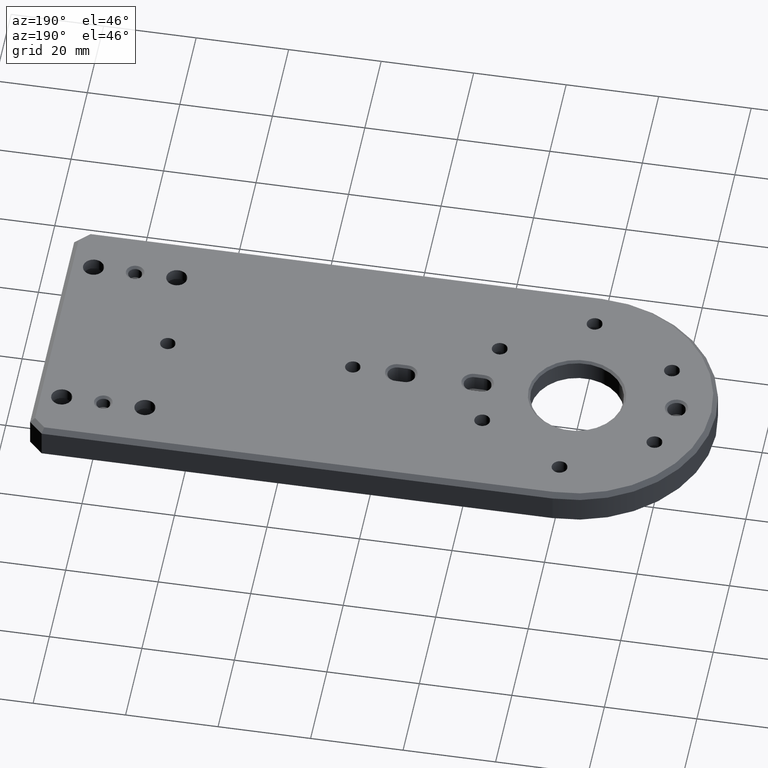
[diagram: clean part render]
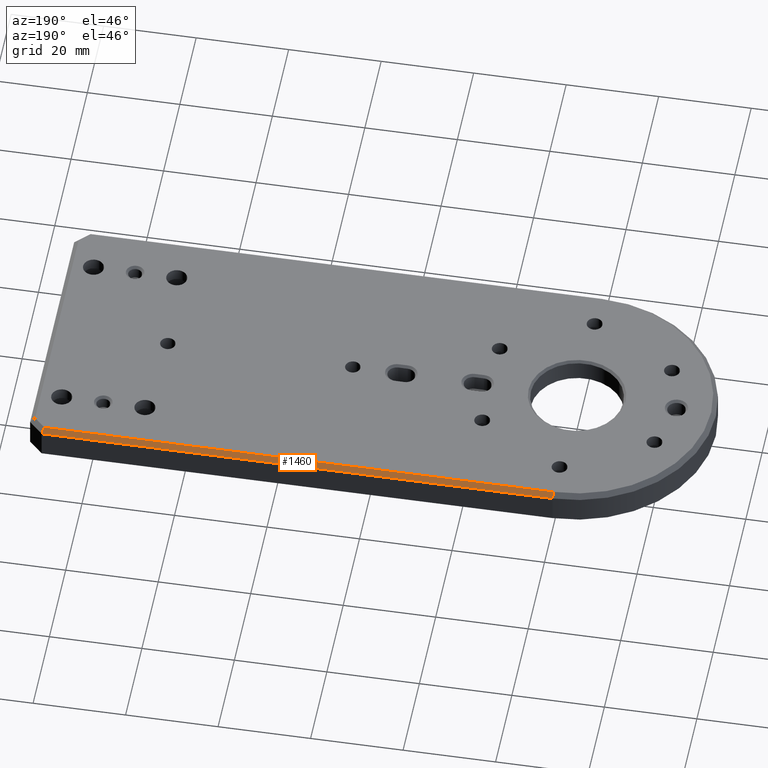
[diagram: same view with one face highlighted and labeled with its STEP entity id]
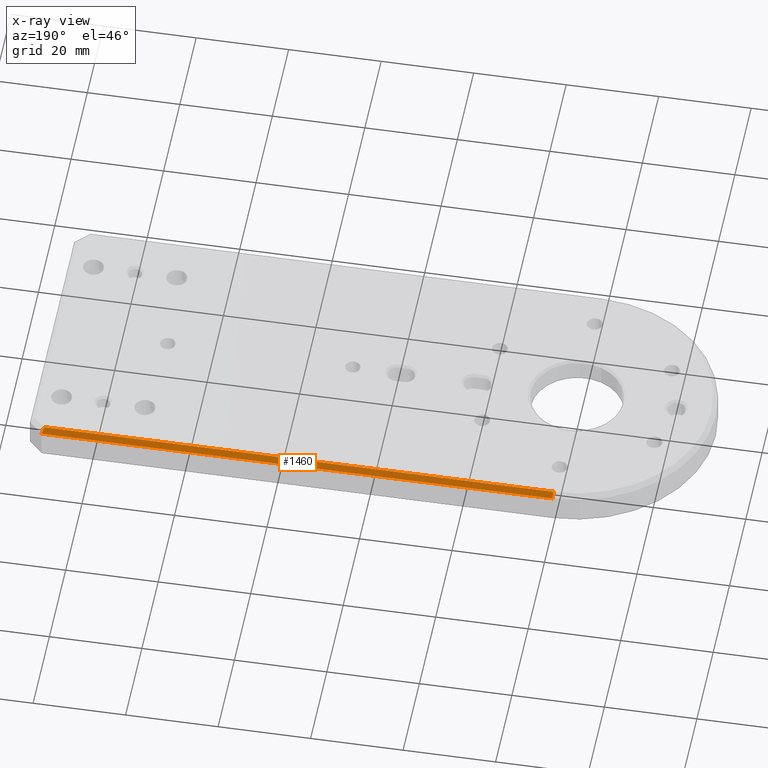
[diagram: x-ray of the same camera — body ghosted, the highlighted face saturated]
A machine part, auxiliary view. The second image highlights one B-rep face of the part: STEP entity #1460.
The next image is the same camera in x-ray: the body ghosted, the highlighted face saturated — about 0% of this face is hidden behind the body in this view.
In plain terms, the highlighted planar face has unit normal (-0, -0.7071, -0.7071).
Its self-contained STEP definition (entity closure, byte-faithful):
#71 = CARTESIAN_POINT ( 'NONE',  ( 101.3880654820386411, 8.001844107283135443, 20.99815589271684857 ) ) ;
#100 = ORIENTED_EDGE ( 'NONE', *, *, #2839, .F. ) ;
#262 = CARTESIAN_POINT ( 'NONE',  ( 1.775737858763660832E-15, 28.99999999999998579, 0.0000000000000000000 ) ) ;
#352 = LINE ( 'NONE', #71, #2848 ) ;
#484 = DIRECTION ( 'NONE',  ( -0.0000000000000000000, -0.7071067811865475727, -0.7071067811865475727 ) ) ;
#681 = LINE ( 'NONE', #1434, #2508 ) ;
#805 = CARTESIAN_POINT ( 'NONE',  ( 0.0000000000000000000, 28.99999999999998579, 0.0000000000000000000 ) ) ;
#806 = VECTOR ( 'NONE', #3294, 1000.000000000000000 ) ;
#817 = ORIENTED_EDGE ( 'NONE', *, *, #2296, .F. ) ;
#833 = VERTEX_POINT ( 'NONE', #3394 ) ;
#1055 = ORIENTED_EDGE ( 'NONE', *, *, #2205, .T. ) ;
#1340 = LINE ( 'NONE', #2188, #806 ) ;
#1434 = CARTESIAN_POINT ( 'NONE',  ( 0.0000000000000000000, 28.99999999999998579, 0.0000000000000000000 ) ) ;
#1460 = ADVANCED_FACE ( 'NONE', ( #2772 ), #1862, .F. ) ;
#1468 = DIRECTION ( 'NONE',  ( -1.000000000000000000, 0.0000000000000000000, 0.0000000000000000000 ) ) ;
#1493 = VERTEX_POINT ( 'NONE', #1883 ) ;
#1594 = DIRECTION ( 'NONE',  ( -1.000000000000000000, 0.0000000000000000000, 0.0000000000000000000 ) ) ;
#1862 = PLANE ( 'NONE',  #2047 ) ;
#1883 = CARTESIAN_POINT ( 'NONE',  ( 110.4999999999999574, 30.00000000000000000, -1.000000000000014655 ) ) ;
#2047 = AXIS2_PLACEMENT_3D ( 'NONE', #805, #484, #1594 ) ;
#2188 = CARTESIAN_POINT ( 'NONE',  ( 1.836970198721029589E-15, 30.00000000000000000, -1.000000000000014655 ) ) ;
#2205 = EDGE_CURVE ( 'NONE', #3276, #1493, #352, .T. ) ;
#2285 = ORIENTED_EDGE ( 'NONE', *, *, #2912, .F. ) ;
#2296 = EDGE_CURVE ( 'NONE', #3276, #3483, #681, .T. ) ;
#2321 = DIRECTION ( 'NONE',  ( 0.2810846377148316089, 0.6785983445458447783, -0.6785983445458447783 ) ) ;
#2334 = CARTESIAN_POINT ( 'NONE',  ( 1.775737858763660832E-15, 28.99999999999998579, 0.0000000000000000000 ) ) ;
#2398 = VECTOR ( 'NONE', #3145, 1000.000000000000114 ) ;
#2508 = VECTOR ( 'NONE', #1468, 1000.000000000000000 ) ;
#2689 = EDGE_LOOP ( 'NONE', ( #1055, #100, #2285, #817 ) ) ;
#2772 = FACE_OUTER_BOUND ( 'NONE', #2689, .T. ) ;
#2839 = EDGE_CURVE ( 'NONE', #833, #1493, #1340, .T. ) ;
#2848 = VECTOR ( 'NONE', #2321, 1000.000000000000000 ) ;
#2912 = EDGE_CURVE ( 'NONE', #3483, #833, #3098, .T. ) ;
#3098 = LINE ( 'NONE', #2334, #2398 ) ;
#3145 = DIRECTION ( 'NONE',  ( 4.329780281177475057E-17, 0.7071067811865474617, -0.7071067811865474617 ) ) ;
#3276 = VERTEX_POINT ( 'NONE', #3458 ) ;
#3294 = DIRECTION ( 'NONE',  ( 1.000000000000000000, 0.0000000000000000000, 0.0000000000000000000 ) ) ;
#3394 = CARTESIAN_POINT ( 'NONE',  ( 1.836970198721029589E-15, 30.00000000000000000, -1.000000000000014655 ) ) ;
#3458 = CARTESIAN_POINT ( 'NONE',  ( 110.0857864376268509, 28.99999999999998579, 0.0000000000000000000 ) ) ;
#3483 = VERTEX_POINT ( 'NONE', #262 ) ;